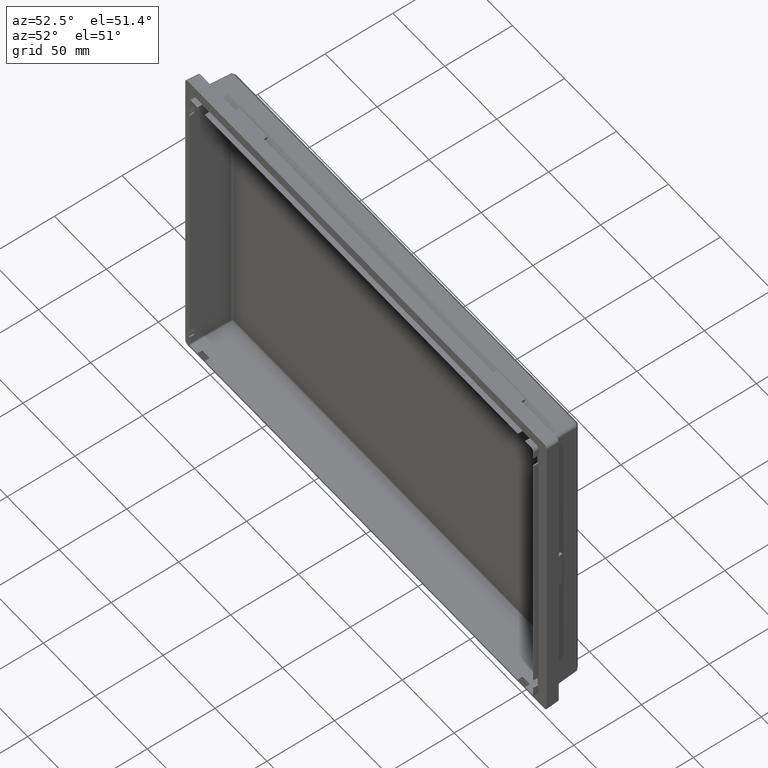
[diagram: clean part render]
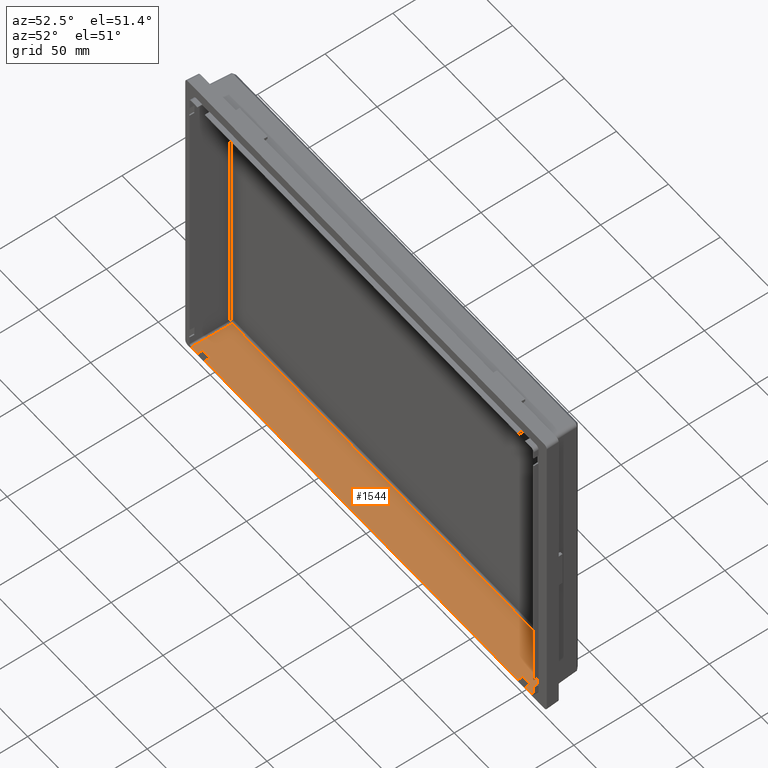
[diagram: same view with one face highlighted and labeled with its STEP entity id]
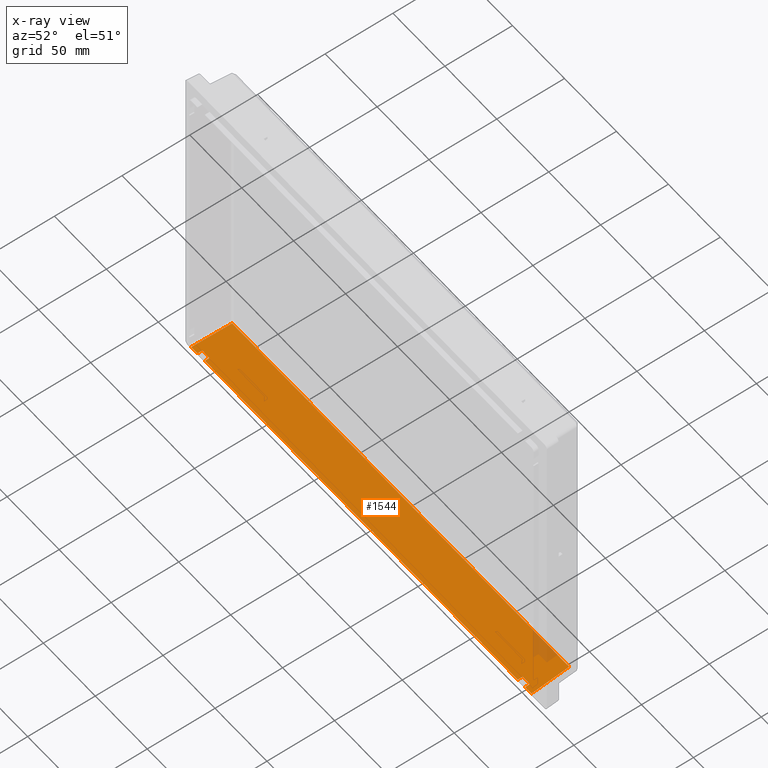
[diagram: x-ray of the same camera — body ghosted, the highlighted face saturated]
A machine part, auxiliary view. The second image highlights one B-rep face of the part: STEP entity #1544.
The next image is the same camera in x-ray: the body ghosted, the highlighted face saturated — about 2% of this face is hidden behind the body in this view.
In plain terms, the highlighted planar face has unit normal (0, 0.0523, -0.9986).
Its self-contained STEP definition (entity closure, byte-faithful):
#591 = CARTESIAN_POINT ( 'NONE',  ( 163.7982231518758200, -3.500000000000001300, -115.2961674539917100 ) ) ;
#595 = CARTESIAN_POINT ( 'NONE',  ( 157.6694559627000000, -3.500000000000000000, -115.2961674540000000 ) ) ;
#596 = CARTESIAN_POINT ( 'NONE',  ( 157.6694559627000000, 0.0000000000000000000, -115.1127402264999900 ) ) ;
#597 = CARTESIAN_POINT ( 'NONE',  ( 150.6694559627000000, 0.0000000000000000000, -115.1127402264999900 ) ) ;
#599 = CARTESIAN_POINT ( 'NONE',  ( 150.6694559627000000, -3.500000000000000000, -115.2961674540000000 ) ) ;
#601 = CARTESIAN_POINT ( 'NONE',  ( -150.6694559627000000, -3.500000000000000000, -115.2961674540000000 ) ) ;
#602 = CARTESIAN_POINT ( 'NONE',  ( -150.6694559627000000, 0.0000000000000000000, -115.1127402264999900 ) ) ;
#604 = CARTESIAN_POINT ( 'NONE',  ( -157.6694559627000000, 0.0000000000000000000, -115.1127402264999900 ) ) ;
#605 = CARTESIAN_POINT ( 'NONE',  ( -157.6694559627000000, -3.500000000000000000, -115.2961674540000000 ) ) ;
#609 = CARTESIAN_POINT ( 'NONE',  ( -163.7982231518417400, -3.500000000000003100, -115.2961674539929100 ) ) ;
#617 = CARTESIAN_POINT ( 'NONE',  ( 162.2742833357999900, 25.57850393436000000, -113.7722276379000000 ) ) ;
#620 = CARTESIAN_POINT ( 'NONE',  ( -162.2742833357999900, 25.57850393436000000, -113.7722276379000000 ) ) ;
#1033 = ORIENTED_EDGE ( 'NONE', *, *, #4208, .T. ) ;
#1035 = ORIENTED_EDGE ( 'NONE', *, *, #4225, .F. ) ;
#1036 = ORIENTED_EDGE ( 'NONE', *, *, #4222, .F. ) ;
#1037 = ORIENTED_EDGE ( 'NONE', *, *, #1680, .T. ) ;
#1178 = EDGE_LOOP ( 'NONE', ( #1033, #1036, #1035, #1037, #3698, #4073, #4072, #4077, #4075, #4076, #4071, #4074 ) ) ;
#1469 = LINE ( 'NONE', #2947, #2591 ) ;
#1473 = LINE ( 'NONE', #2967, #2599 ) ;
#1485 = LINE ( 'NONE', #2999, #2614 ) ;
#1488 = LINE ( 'NONE', #3006, #2618 ) ;
#1489 = LINE ( 'NONE', #3008, #2620 ) ;
#1544 = ADVANCED_FACE ( 'NONE', ( #2255 ), #3504, .F. ) ;
#1679 = EDGE_CURVE ( 'NONE', #2064, #2062, #2379, .T. ) ;
#1680 = EDGE_CURVE ( 'NONE', #2066, #2064, #2380, .T. ) ;
#1684 = EDGE_CURVE ( 'NONE', #2062, #2061, #2384, .T. ) ;
#1685 = EDGE_CURVE ( 'NONE', #2060, #2061, #2385, .T. ) ;
#1686 = EDGE_CURVE ( 'NONE', #2060, #2056, #2386, .T. ) ;
#1687 = EDGE_CURVE ( 'NONE', #2056, #2082, #2387, .T. ) ;
#1691 = EDGE_CURVE ( 'NONE', #2074, #2070, #2391, .T. ) ;
#2056 = VERTEX_POINT ( 'NONE', #591 ) ;
#2060 = VERTEX_POINT ( 'NONE', #595 ) ;
#2061 = VERTEX_POINT ( 'NONE', #596 ) ;
#2062 = VERTEX_POINT ( 'NONE', #597 ) ;
#2064 = VERTEX_POINT ( 'NONE', #599 ) ;
#2066 = VERTEX_POINT ( 'NONE', #601 ) ;
#2067 = VERTEX_POINT ( 'NONE', #602 ) ;
#2069 = VERTEX_POINT ( 'NONE', #604 ) ;
#2070 = VERTEX_POINT ( 'NONE', #605 ) ;
#2074 = VERTEX_POINT ( 'NONE', #609 ) ;
#2082 = VERTEX_POINT ( 'NONE', #617 ) ;
#2085 = VERTEX_POINT ( 'NONE', #620 ) ;
#2255 = FACE_OUTER_BOUND ( 'NONE', #1178, .T. ) ;
#2379 = LINE ( 'NONE', #3950, #3516 ) ;
#2380 = LINE ( 'NONE', #3948, #3619 ) ;
#2384 = LINE ( 'NONE', #3940, #3620 ) ;
#2385 = LINE ( 'NONE', #3938, #3221 ) ;
#2386 = LINE ( 'NONE', #3936, #3222 ) ;
#2387 = LINE ( 'NONE', #3957, #3223 ) ;
#2391 = LINE ( 'NONE', #3912, #4340 ) ;
#2591 = VECTOR ( 'NONE', #2948, 1000.000000000000000 ) ;
#2599 = VECTOR ( 'NONE', #2968, 1000.000000000000100 ) ;
#2614 = VECTOR ( 'NONE', #3000, 1000.000000000000000 ) ;
#2618 = VECTOR ( 'NONE', #3007, 1000.000000000000100 ) ;
#2620 = VECTOR ( 'NONE', #3009, 1000.000000000000000 ) ;
#2947 = CARTESIAN_POINT ( 'NONE',  ( -162.2742833357000100, 25.57850393437000100, -113.7722276379000000 ) ) ;
#2948 = DIRECTION ( 'NONE',  ( -0.05226442768971920800, -0.9972646886341849400, -0.05226442768870921000 ) ) ;
#2967 = CARTESIAN_POINT ( 'NONE',  ( -157.6694559627000000, -3.500000000000000000, -115.2961674540000000 ) ) ;
#2968 = DIRECTION ( 'NONE',  ( 0.0000000000000000000, 0.9986295347545741700, 0.05233595624293864400 ) ) ;
#2999 = CARTESIAN_POINT ( 'NONE',  ( -150.6694559627000000, 0.0000000000000000000, -115.1127402264999900 ) ) ;
#3000 = DIRECTION ( 'NONE',  ( -1.000000000000000000, 0.0000000000000000000, 0.0000000000000000000 ) ) ;
#3006 = CARTESIAN_POINT ( 'NONE',  ( -150.6694559627000000, -3.500000000000000000, -115.2961674540000000 ) ) ;
#3007 = DIRECTION ( 'NONE',  ( 0.0000000000000000000, 0.9986295347545741700, 0.05233595624293864400 ) ) ;
#3008 = CARTESIAN_POINT ( 'NONE',  ( -162.2742833357000100, 25.57850393437000100, -113.7722276379000000 ) ) ;
#3009 = DIRECTION ( 'NONE',  ( 1.000000000000000000, 0.0000000000000000000, 0.0000000000000000000 ) ) ;
#3221 = VECTOR ( 'NONE', #3937, 1000.000000000000100 ) ;
#3222 = VECTOR ( 'NONE', #3935, 1000.000000000000000 ) ;
#3223 = VECTOR ( 'NONE', #3953, 1000.000000000000100 ) ;
#3498 = CARTESIAN_POINT ( 'NONE',  ( -235.0000000000000300, -20.00000000000000000, -116.1608958122000000 ) ) ;
#3503 = DIRECTION ( 'NONE',  ( 0.0000000000000000000, 0.05233595624293865100, -0.9986295347545742800 ) ) ;
#3504 = PLANE ( 'NONE',  #4066 ) ;
#3505 = DIRECTION ( 'NONE',  ( 0.0000000000000000000, 0.9986295347545742800, 0.05233595624293865100 ) ) ;
#3516 = VECTOR ( 'NONE', #3949, 1000.000000000000100 ) ;
#3619 = VECTOR ( 'NONE', #3947, 1000.000000000000000 ) ;
#3620 = VECTOR ( 'NONE', #3939, 1000.000000000000000 ) ;
#3698 = ORIENTED_EDGE ( 'NONE', *, *, #1679, .T. ) ;
#3911 = DIRECTION ( 'NONE',  ( 1.000000000000000000, 0.0000000000000000000, 0.0000000000000000000 ) ) ;
#3912 = CARTESIAN_POINT ( 'NONE',  ( -163.7982231519000000, -3.500000000000000000, -115.2961674540000000 ) ) ;
#3935 = DIRECTION ( 'NONE',  ( 1.000000000000000000, 0.0000000000000000000, 0.0000000000000000000 ) ) ;
#3936 = CARTESIAN_POINT ( 'NONE',  ( 157.6694559627000000, -3.500000000000000000, -115.2961674540000000 ) ) ;
#3937 = DIRECTION ( 'NONE',  ( 0.0000000000000000000, 0.9986295347545741700, 0.05233595624293864400 ) ) ;
#3938 = CARTESIAN_POINT ( 'NONE',  ( 157.6694559627000000, -3.500000000000000000, -115.2961674540000000 ) ) ;
#3939 = DIRECTION ( 'NONE',  ( 1.000000000000000000, 0.0000000000000000000, 0.0000000000000000000 ) ) ;
#3940 = CARTESIAN_POINT ( 'NONE',  ( 150.6694559627000000, 0.0000000000000000000, -115.1127402264999900 ) ) ;
#3947 = DIRECTION ( 'NONE',  ( 1.000000000000000000, 0.0000000000000000000, 0.0000000000000000000 ) ) ;
#3948 = CARTESIAN_POINT ( 'NONE',  ( -150.6694559627000000, -3.500000000000000000, -115.2961674540000000 ) ) ;
#3949 = DIRECTION ( 'NONE',  ( 0.0000000000000000000, 0.9986295347545741700, 0.05233595624293864400 ) ) ;
#3950 = CARTESIAN_POINT ( 'NONE',  ( 150.6694559627000000, -3.500000000000000000, -115.2961674540000000 ) ) ;
#3953 = DIRECTION ( 'NONE',  ( -0.05226442768871195800, 0.9972646886342374500, 0.05226442768871195800 ) ) ;
#3957 = CARTESIAN_POINT ( 'NONE',  ( 163.7982231519000000, -3.500000000000000000, -115.2961674540000000 ) ) ;
#4066 = AXIS2_PLACEMENT_3D ( 'NONE', #3498, #3503, #3505 ) ;
#4071 = ORIENTED_EDGE ( 'NONE', *, *, #4201, .T. ) ;
#4072 = ORIENTED_EDGE ( 'NONE', *, *, #1685, .F. ) ;
#4073 = ORIENTED_EDGE ( 'NONE', *, *, #1684, .T. ) ;
#4074 = ORIENTED_EDGE ( 'NONE', *, *, #1691, .T. ) ;
#4075 = ORIENTED_EDGE ( 'NONE', *, *, #1687, .T. ) ;
#4076 = ORIENTED_EDGE ( 'NONE', *, *, #4226, .F. ) ;
#4077 = ORIENTED_EDGE ( 'NONE', *, *, #1686, .T. ) ;
#4201 = EDGE_CURVE ( 'NONE', #2085, #2074, #1469, .T. ) ;
#4208 = EDGE_CURVE ( 'NONE', #2070, #2069, #1473, .T. ) ;
#4222 = EDGE_CURVE ( 'NONE', #2067, #2069, #1485, .T. ) ;
#4225 = EDGE_CURVE ( 'NONE', #2066, #2067, #1488, .T. ) ;
#4226 = EDGE_CURVE ( 'NONE', #2085, #2082, #1489, .T. ) ;
#4340 = VECTOR ( 'NONE', #3911, 1000.000000000000000 ) ;